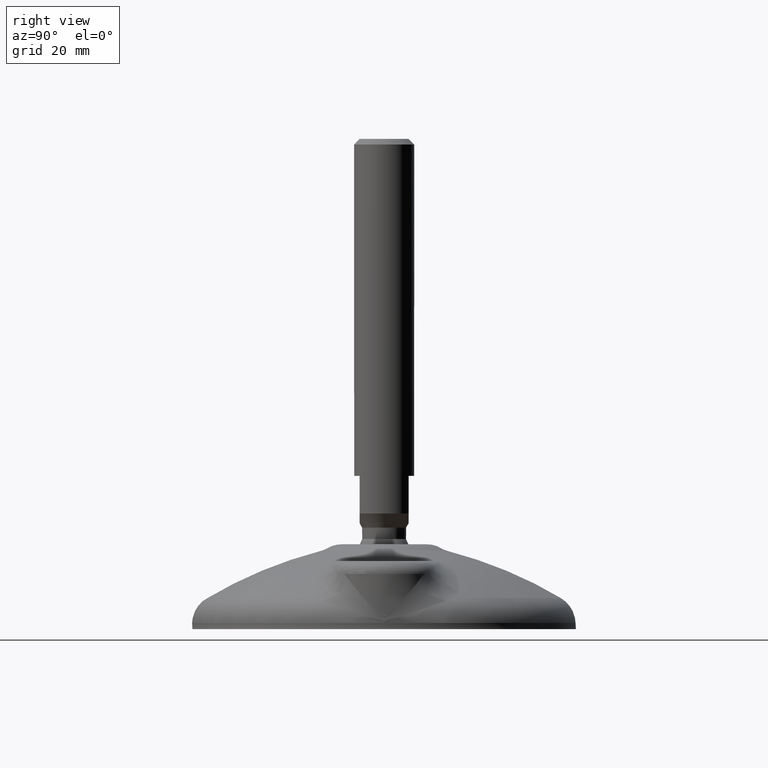
[diagram: clean part render]
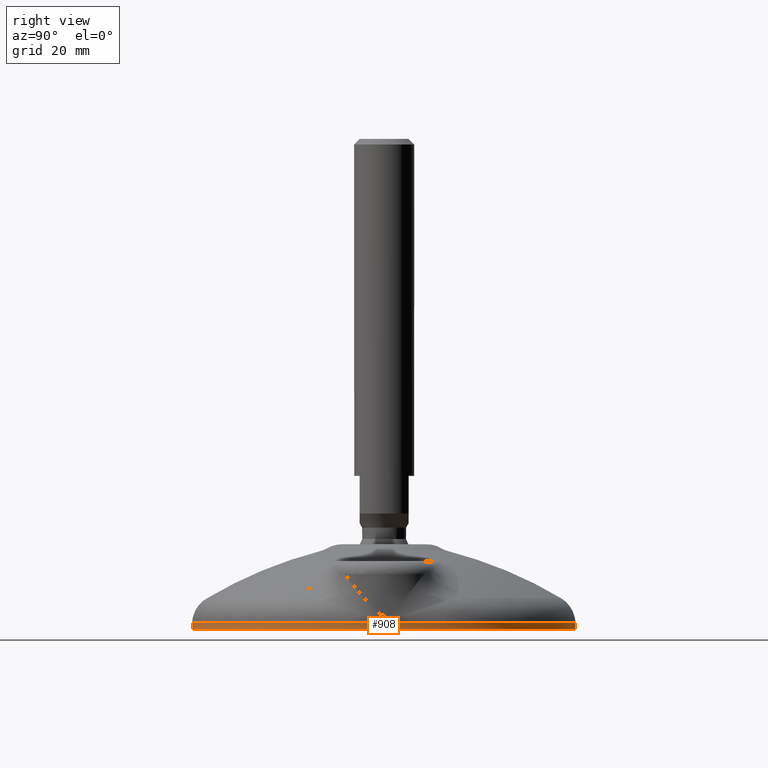
[diagram: same view with one face highlighted and labeled with its STEP entity id]
A machine part, right view. The second image highlights one B-rep face of the part: STEP entity #908.
In plain terms, the highlighted conical surface has half-angle 2 deg.
Its self-contained STEP definition (entity closure, byte-faithful):
#47=CONICAL_SURFACE('',#1019,50.9547927401018,0.0349003858854401);
#99=LINE('',#3456,#121);
#121=VECTOR('',#1186,50.9547927401018);
#160=FACE_OUTER_BOUND('',#226,.T.);
#226=EDGE_LOOP('',(#644,#645,#646,#647,#648));
#279=CIRCLE('',#986,51.0059959473287);
#286=CIRCLE('',#999,50.9491029525027);
#290=CIRCLE('',#1003,50.9491029525027);
#354=VERTEX_POINT('',#1371);
#367=VERTEX_POINT('',#1994);
#368=VERTEX_POINT('',#1995);
#437=EDGE_CURVE('',#354,#354,#279,.T.);
#454=EDGE_CURVE('',#367,#368,#286,.T.);
#466=EDGE_CURVE('',#368,#367,#290,.T.);
#496=EDGE_CURVE('',#354,#367,#99,.T.);
#644=ORIENTED_EDGE('',*,*,#437,.T.);
#645=ORIENTED_EDGE('',*,*,#496,.T.);
#646=ORIENTED_EDGE('',*,*,#466,.F.);
#647=ORIENTED_EDGE('',*,*,#454,.F.);
#648=ORIENTED_EDGE('',*,*,#496,.F.);
#908=ADVANCED_FACE('',(#160),#47,.T.);
#986=AXIS2_PLACEMENT_3D('',#1372,#1114,#1115);
#999=AXIS2_PLACEMENT_3D('',#1996,#1142,#1143);
#1003=AXIS2_PLACEMENT_3D('',#2354,#1150,#1151);
#1019=AXIS2_PLACEMENT_3D('',#3455,#1184,#1185);
#1114=DIRECTION('center_axis',(0.,0.,1.));
#1115=DIRECTION('ref_axis',(-0.581108564666722,-0.813826047795831,0.));
#1142=DIRECTION('center_axis',(0.,0.,1.));
#1143=DIRECTION('ref_axis',(0.,-1.,0.));
#1150=DIRECTION('center_axis',(0.,0.,1.));
#1151=DIRECTION('ref_axis',(0.,-1.,0.));
#1184=DIRECTION('center_axis',(8.16356713566448E-10,-1.75061429113234E-10,
-1.));
#1185=DIRECTION('ref_axis',(-0.581108564644954,-0.813826047811374,-3.31922327079436E-10));
#1186=DIRECTION('',(-0.0202767970638228,-0.028397077336437,0.999391043335681));
#1371=CARTESIAN_POINT('',(29.6400218404932,41.5100079892569,4.35762537165374E-14));
#1372=CARTESIAN_POINT('Origin',(7.48365001079776E-7,-1.08033404444541E-7,
4.35762537165374E-14));
#1994=CARTESIAN_POINT('',(29.6069606312936,41.4637067064891,1.62946181325617));
#1995=CARTESIAN_POINT('',(50.9491029525027,-1.10036549530143E-6,1.62946181325617));
#1996=CARTESIAN_POINT('Origin',(0.,3.817677E-15,1.62946181325617));
#2354=CARTESIAN_POINT('Origin',(0.,3.817677E-15,1.62946181325617));
#3455=CARTESIAN_POINT('Origin',(7.45713975014439E-7,-1.07464908083443E-7,
1.4665286674494));
#3456=CARTESIAN_POINT('',(29.6102672166957,41.4683374852598,1.46652868436243));